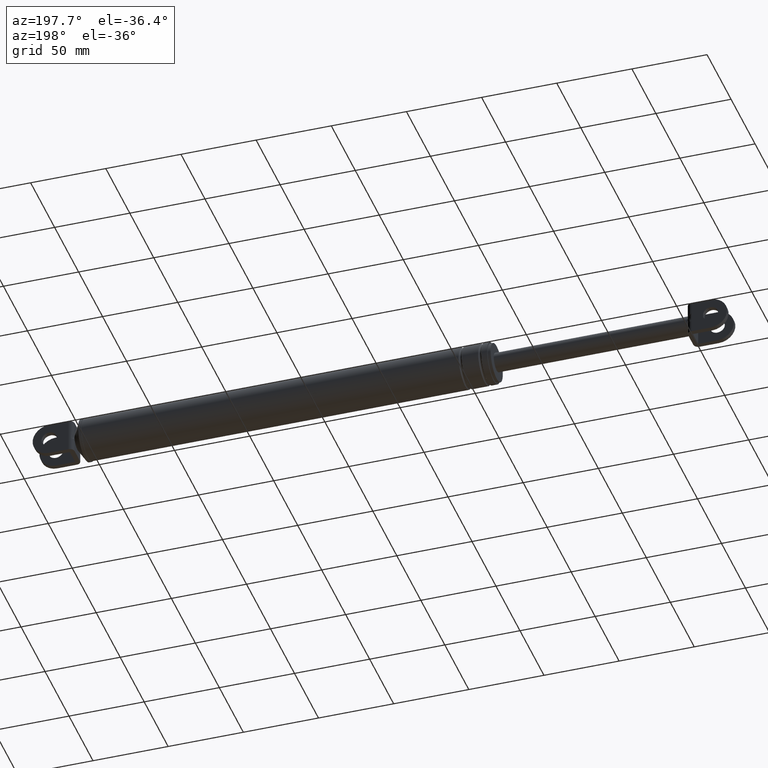
[diagram: clean part render]
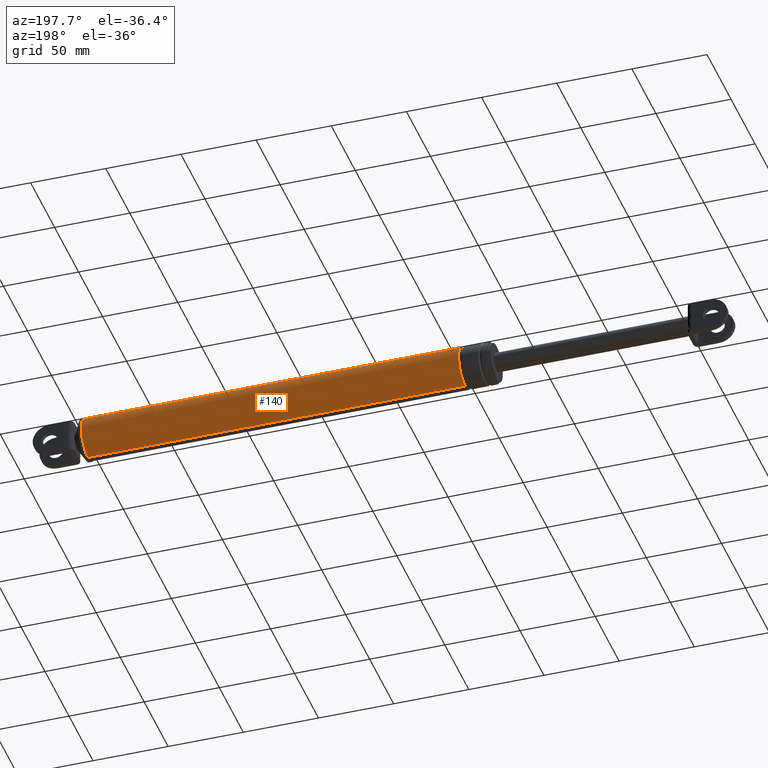
[diagram: same view with one face highlighted and labeled with its STEP entity id]
A machine part, auxiliary view. The second image highlights one B-rep face of the part: STEP entity #140.
In plain terms, the highlighted cylindrical surface (edge-blend (fillet) strip) has radius 13.7 mm, axis along (-1, -0, -0).
Its self-contained STEP definition (entity closure, byte-faithful):
#140=ADVANCED_FACE('',(#463),#462,.T.);
#462=CYLINDRICAL_SURFACE('',#1395,1.37000000000E+001);
#463=FACE_OUTER_BOUND('',#1396,.T.);
#1392=CARTESIAN_POINT('',(1.46675390861E+002,3.95008575888E-013,1.89728345508E+002));
#1393=DIRECTION('',(-1.00000000000E+000,-0.00000000000E+000,-0.00000000000E+000));
#1394=DIRECTION('',(0.00000000000E+000,2.88327427655E-014,1.00000000000E+000));
#1395=AXIS2_PLACEMENT_3D('',#1392,#1393,#1394);
#1396=EDGE_LOOP('',(#2069,#2070,#2071,#2072));
#2069=ORIENTED_EDGE('',*,*,#2315,.F.);
#2070=ORIENTED_EDGE('',*,*,#2316,.F.);
#2071=ORIENTED_EDGE('',*,*,#2286,.T.);
#2072=ORIENTED_EDGE('',*,*,#2317,.T.);
#2286=EDGE_CURVE('',#2704,#2705,#2706,.T.);
#2315=EDGE_CURVE('',#2891,#2892,#2893,.T.);
#2316=EDGE_CURVE('',#2704,#2891,#2899,.T.);
#2317=EDGE_CURVE('',#2705,#2892,#2905,.T.);
#2704=VERTEX_POINT('',#3643);
#2705=VERTEX_POINT('',#3644);
#2706=CIRCLE('',#3648,1.37000000000E+001);
#2891=VERTEX_POINT('',#3747);
#2892=VERTEX_POINT('',#3748);
#2893=CIRCLE('',#3752,1.37000000000E+001);
#2899=(BOUNDED_CURVE() B_SPLINE_CURVE(1,(#3753,#3754),.UNSPECIFIED.,.F.,.F.) B_SPLINE_CURVE_WITH_KNOTS((2,2),(3.69003689851E-002,9.63099631073E-001),.UNSPECIFIED.) CURVE() GEOMETRIC_REPRESENTATION_ITEM() RATIONAL_B_SPLINE_CURVE((1.00000000000E+000,1.00000000000E+000)) REPRESENTATION_ITEM('') );
#2905=(BOUNDED_CURVE() B_SPLINE_CURVE(1,(#3755,#3756),.UNSPECIFIED.,.F.,.F.) B_SPLINE_CURVE_WITH_KNOTS((2,2),(3.69003690037E-002,9.63099630996E-001),.UNSPECIFIED.) CURVE() GEOMETRIC_REPRESENTATION_ITEM() RATIONAL_B_SPLINE_CURVE((7.50000000000E-001,7.50000000000E-001)) REPRESENTATION_ITEM('') );
#3643=CARTESIAN_POINT('',(4.07675390861E+002,8.50282807126E-013,2.03428345508E+002));
#3644=CARTESIAN_POINT('',(4.07675390861E+002,3.70707879624E-015,1.76028345508E+002));
#3645=CARTESIAN_POINT('',(4.07675390861E+002,4.23015369852E-013,1.89728345508E+002));
#3646=DIRECTION('',(-1.00000000000E+000,-2.93389539725E-015,-9.09492754956E-029));
#3647=DIRECTION('',(1.82407580425E-028,-3.11729944479E-014,-1.00000000000E+000));
#3648=AXIS2_PLACEMENT_3D('',#3645,#3646,#3647);
#3747=CARTESIAN_POINT('',(1.56675390861E+002,8.63309423949E-013,2.03428345508E+002));
#3748=CARTESIAN_POINT('',(1.56675390861E+002,-1.60607257908E-014,1.76028345508E+002));
#3749=CARTESIAN_POINT('',(1.56675390861E+002,4.22257500821E-013,1.89728345508E+002));
#3750=DIRECTION('',(-1.00000000000E+000,0.00000000000E+000,0.00000000000E+000));
#3751=DIRECTION('',(-0.00000000000E+000,-3.21164917749E-014,-1.00000000000E+000));
#3752=AXIS2_PLACEMENT_3D('',#3749,#3750,#3751);
#3753=CARTESIAN_POINT('',(4.07675390866E+002,7.90017151776E-013,2.03428345508E+002));
#3754=CARTESIAN_POINT('',(1.56675390840E+002,7.90017151776E-013,2.03428345508E+002));
#3755=CARTESIAN_POINT('',(4.07675390861E+002,0.00000000000E+000,1.76028345508E+002));
#3756=CARTESIAN_POINT('',(1.56675390861E+002,0.00000000000E+000,1.76028345508E+002));